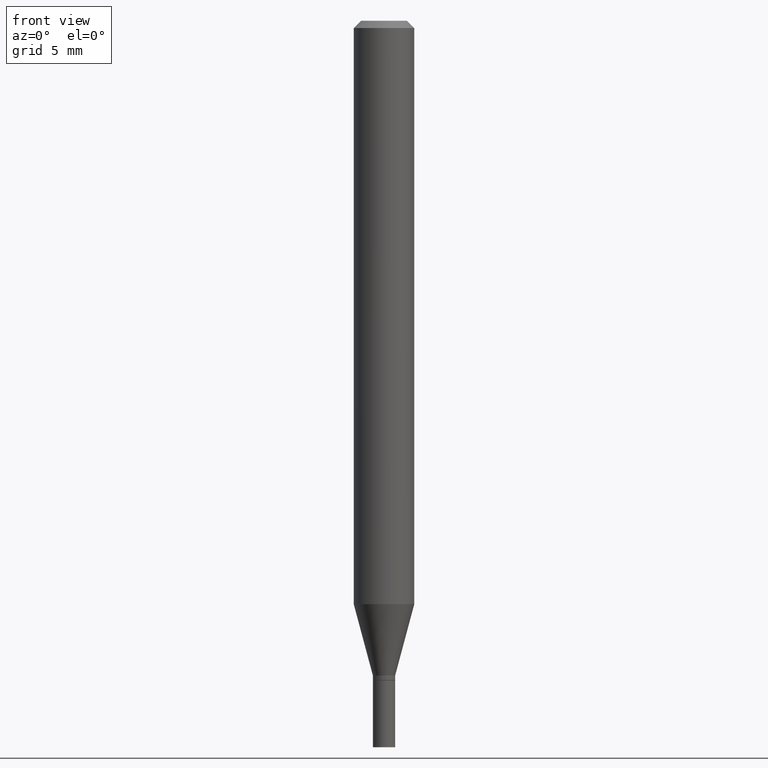
[diagram: clean part render]
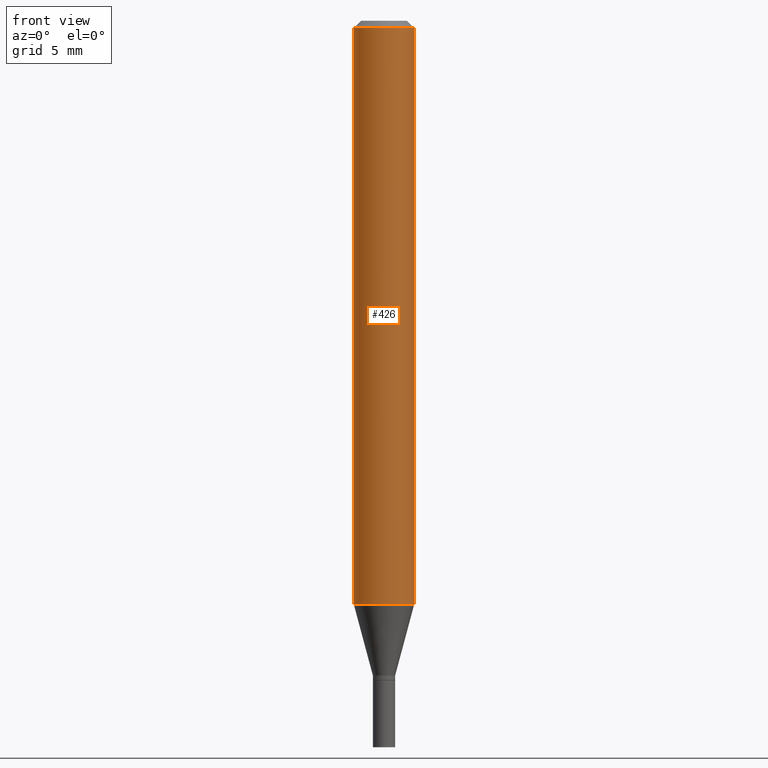
[diagram: same view with one face highlighted and labeled with its STEP entity id]
A machine part, front view. The second image highlights one B-rep face of the part: STEP entity #426.
In plain terms, the highlighted cylindrical surface (edge-blend (fillet) strip) has radius 1.5875 mm, axis along (-0, 0, 1).
Its self-contained STEP definition (entity closure, byte-faithful):
#16 = AXIS2_PLACEMENT_3D ( 'NONE', #243, #350, #319 ) ;
#30 = CARTESIAN_POINT ( 'NONE',  ( 0.06250000000000000000, -4.642217700336797405E-15, -1.204583993101029815 ) ) ;
#71 = LINE ( 'NONE', #178, #226 ) ;
#81 = CARTESIAN_POINT ( 'NONE',  ( -0.06250000000000000000, 4.440892098500626162E-16, -3.074334431409316114E-30 ) ) ;
#83 = ORIENTED_EDGE ( 'NONE', *, *, #156, .T. ) ;
#93 = VECTOR ( 'NONE', #223, 39.37007874015748143 ) ;
#124 = VERTEX_POINT ( 'NONE', #30 ) ;
#142 = VERTEX_POINT ( 'NONE', #390 ) ;
#156 = EDGE_CURVE ( 'NONE', #462, #124, #186, .T. ) ;
#159 = CARTESIAN_POINT ( 'NONE',  ( -0.06250000000000000000, -3.761693323131343908E-15, -1.204583993101029815 ) ) ;
#162 = VERTEX_POINT ( 'NONE', #425 ) ;
#178 = CARTESIAN_POINT ( 'NONE',  ( 0.06250000000000000000, -4.364351673553916694E-16, 3.047610484872459871E-30 ) ) ;
#183 = CIRCLE ( 'NONE', #334, 0.06250000000000000000 ) ;
#186 = CIRCLE ( 'NONE', #16, 0.06250000000000000000 ) ;
#218 = DIRECTION ( 'NONE',  ( -2.445468806185136597E-29, 3.491481338843145583E-15, 1.000000000000000000 ) ) ;
#223 = DIRECTION ( 'NONE',  ( -2.445468806185136877E-29, 3.491481338843145188E-15, 1.000000000000000000 ) ) ;
#225 = DIRECTION ( 'NONE',  ( 1.000000000000000000, -6.982962677686266711E-15, 4.876176775795935793E-29 ) ) ;
#226 = VECTOR ( 'NONE', #429, 39.37007874015748143 ) ;
#243 = CARTESIAN_POINT ( 'NONE',  ( 2.945772579558500025E-29, -4.205782532981405736E-15, -1.204583993101029815 ) ) ;
#267 = ORIENTED_EDGE ( 'NONE', *, *, #280, .T. ) ;
#280 = EDGE_CURVE ( 'NONE', #124, #162, #71, .T. ) ;
#295 = ORIENTED_EDGE ( 'NONE', *, *, #338, .F. ) ;
#319 = DIRECTION ( 'NONE',  ( 1.000000000000000000, -6.982962677686270655E-15, 0.000000000000000000 ) ) ;
#326 = AXIS2_PLACEMENT_3D ( 'NONE', #402, #435, #225 ) ;
#334 = AXIS2_PLACEMENT_3D ( 'NONE', #413, #218, #373 ) ;
#338 = EDGE_CURVE ( 'NONE', #462, #142, #367, .T. ) ;
#348 = EDGE_CURVE ( 'NONE', #142, #162, #183, .T. ) ;
#350 = DIRECTION ( 'NONE',  ( -2.445468806185136597E-29, 3.491481338843145583E-15, 1.000000000000000000 ) ) ;
#355 = CYLINDRICAL_SURFACE ( 'NONE', #326, 0.06250000000000000000 ) ;
#365 = EDGE_LOOP ( 'NONE', ( #295, #83, #267, #398 ) ) ;
#367 = LINE ( 'NONE', #81, #93 ) ;
#373 = DIRECTION ( 'NONE',  ( 1.000000000000000000, -6.982962677686266711E-15, 0.000000000000000000 ) ) ;
#390 = CARTESIAN_POINT ( 'NONE',  ( -0.06250000000000000000, -1.684988166681963988E-15, -0.01499999999999999944 ) ) ;
#398 = ORIENTED_EDGE ( 'NONE', *, *, #348, .F. ) ;
#402 = CARTESIAN_POINT ( 'NONE',  ( 0.000000000000000000, 0.000000000000000000, 0.000000000000000000 ) ) ;
#410 = FACE_OUTER_BOUND ( 'NONE', #365, .T. ) ;
#413 = CARTESIAN_POINT ( 'NONE',  ( 3.668203209277705088E-31, -5.237222008264718399E-17, -0.01499999999999999944 ) ) ;
#425 = CARTESIAN_POINT ( 'NONE',  ( 0.06250000000000000000, -4.888073874380388472E-16, -0.01499999999999999944 ) ) ;
#426 = ADVANCED_FACE ( 'NONE', ( #410 ), #355, .T. ) ;
#429 = DIRECTION ( 'NONE',  ( -2.445468806185136877E-29, 3.491481338843145188E-15, 1.000000000000000000 ) ) ;
#435 = DIRECTION ( 'NONE',  ( -2.445468806185136597E-29, 3.491481338843145583E-15, 1.000000000000000000 ) ) ;
#462 = VERTEX_POINT ( 'NONE', #159 ) ;